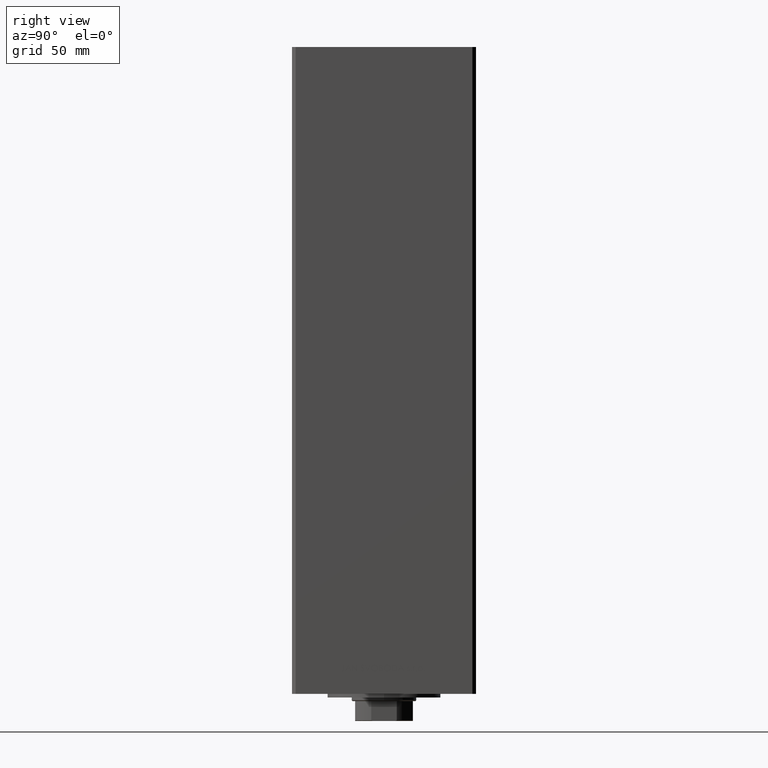
[diagram: clean part render]
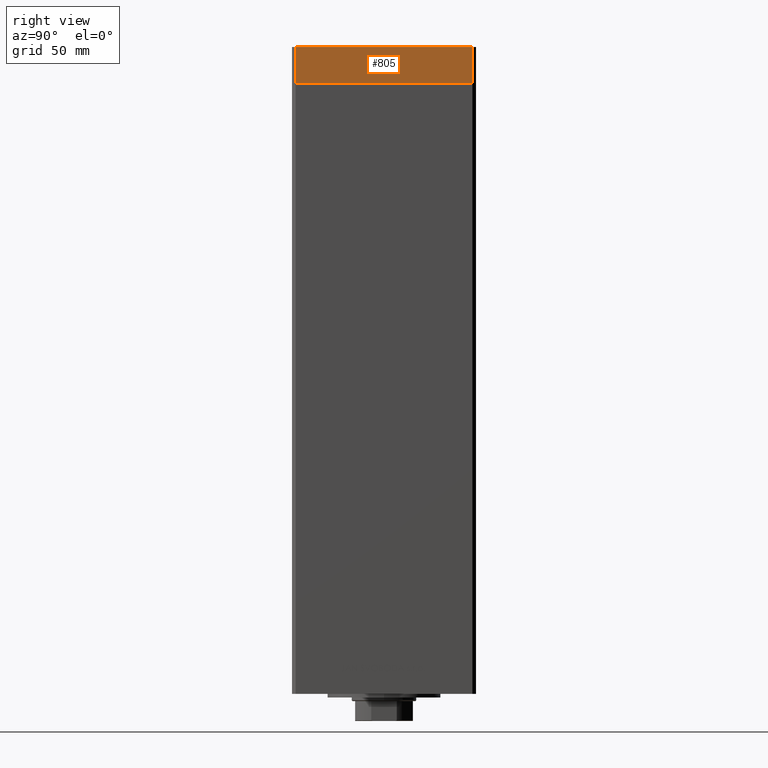
[diagram: same view with one face highlighted and labeled with its STEP entity id]
A machine part, right view. The second image highlights one B-rep face of the part: STEP entity #805.
In plain terms, the highlighted planar face has unit normal (1, 0, 0).
Its self-contained STEP definition (entity closure, byte-faithful):
#805 = ADVANCED_FACE ( 'NONE', ( #41430 ), #7621, .T. ) ;
#3222 = EDGE_CURVE ( 'NONE', #29132, #24624, #33229, .T. ) ;
#3767 = DIRECTION ( 'NONE',  ( -7.080503983578803823E-16, 1.000000000000000000, 0.000000000000000000 ) ) ;
#4059 = ORIENTED_EDGE ( 'NONE', *, *, #49056, .T. ) ;
#4906 = CARTESIAN_POINT ( 'NONE',  ( 59.99999999999994316, 49.00000000000000000, -20.00000000000000000 ) ) ;
#5007 = EDGE_CURVE ( 'NONE', #9160, #29132, #8846, .T. ) ;
#5251 = VECTOR ( 'NONE', #20544, 1000.000000000000000 ) ;
#7467 = ORIENTED_EDGE ( 'NONE', *, *, #5007, .F. ) ;
#7475 = DIRECTION ( 'NONE',  ( 0.000000000000000000, 0.000000000000000000, 1.000000000000000000 ) ) ;
#7621 = PLANE ( 'NONE',  #40172 ) ;
#8533 = EDGE_LOOP ( 'NONE', ( #21558, #7467, #27539, #4059 ) ) ;
#8818 = VERTEX_POINT ( 'NONE', #4906 ) ;
#8846 = LINE ( 'NONE', #12817, #5251 ) ;
#9160 = VERTEX_POINT ( 'NONE', #39532 ) ;
#12318 = DIRECTION ( 'NONE',  ( -7.080503983578804809E-16, 1.000000000000000000, 0.000000000000000000 ) ) ;
#12817 = CARTESIAN_POINT ( 'NONE',  ( 60.00000000000001421, -48.99999999999999289, -20.00000000000000000 ) ) ;
#16447 = VECTOR ( 'NONE', #7475, 1000.000000000000000 ) ;
#20544 = DIRECTION ( 'NONE',  ( 0.000000000000000000, 0.000000000000000000, 1.000000000000000000 ) ) ;
#20729 = CARTESIAN_POINT ( 'NONE',  ( 59.99999999999994316, 49.00000000000000000, 0.000000000000000000 ) ) ;
#21558 = ORIENTED_EDGE ( 'NONE', *, *, #3222, .F. ) ;
#22788 = CARTESIAN_POINT ( 'NONE',  ( 60.00000000000001421, -48.99999999999999289, -20.00000000000000000 ) ) ;
#24624 = VERTEX_POINT ( 'NONE', #20729 ) ;
#25344 = VECTOR ( 'NONE', #3767, 1000.000000000000000 ) ;
#25705 = LINE ( 'NONE', #37819, #25344 ) ;
#27539 = ORIENTED_EDGE ( 'NONE', *, *, #37557, .T. ) ;
#28623 = CARTESIAN_POINT ( 'NONE',  ( 60.00000000000001421, -48.99999999999999289, 0.000000000000000000 ) ) ;
#29132 = VERTEX_POINT ( 'NONE', #28623 ) ;
#29841 = VECTOR ( 'NONE', #37444, 1000.000000000000000 ) ;
#30351 = LINE ( 'NONE', #41529, #16447 ) ;
#31708 = DIRECTION ( 'NONE',  ( 1.000000000000000000, 7.080503983578804809E-16, -0.000000000000000000 ) ) ;
#33229 = LINE ( 'NONE', #44644, #29841 ) ;
#37444 = DIRECTION ( 'NONE',  ( -7.080503983578803823E-16, 1.000000000000000000, 0.000000000000000000 ) ) ;
#37557 = EDGE_CURVE ( 'NONE', #9160, #8818, #25705, .T. ) ;
#37819 = CARTESIAN_POINT ( 'NONE',  ( 60.00000000000001421, -48.99999999999999289, -20.00000000000000000 ) ) ;
#39532 = CARTESIAN_POINT ( 'NONE',  ( 60.00000000000001421, -48.99999999999999289, -20.00000000000000000 ) ) ;
#40172 = AXIS2_PLACEMENT_3D ( 'NONE', #22788, #31708, #12318 ) ;
#41430 = FACE_OUTER_BOUND ( 'NONE', #8533, .T. ) ;
#41529 = CARTESIAN_POINT ( 'NONE',  ( 59.99999999999994316, 49.00000000000000000, -20.00000000000000000 ) ) ;
#44644 = CARTESIAN_POINT ( 'NONE',  ( 60.00000000000001421, -48.99999999999999289, 0.000000000000000000 ) ) ;
#49056 = EDGE_CURVE ( 'NONE', #8818, #24624, #30351, .T. ) ;